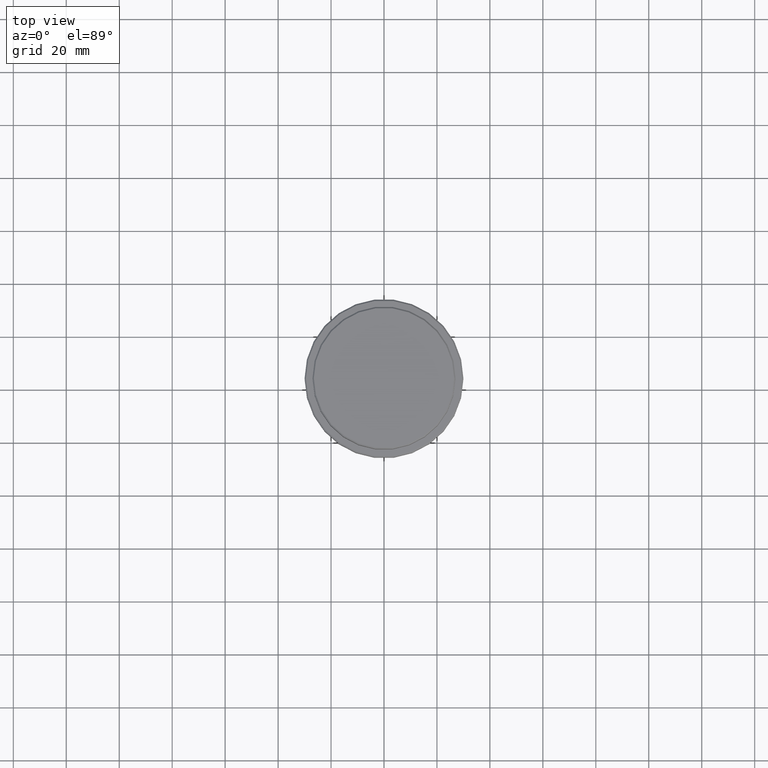
[diagram: clean part render]
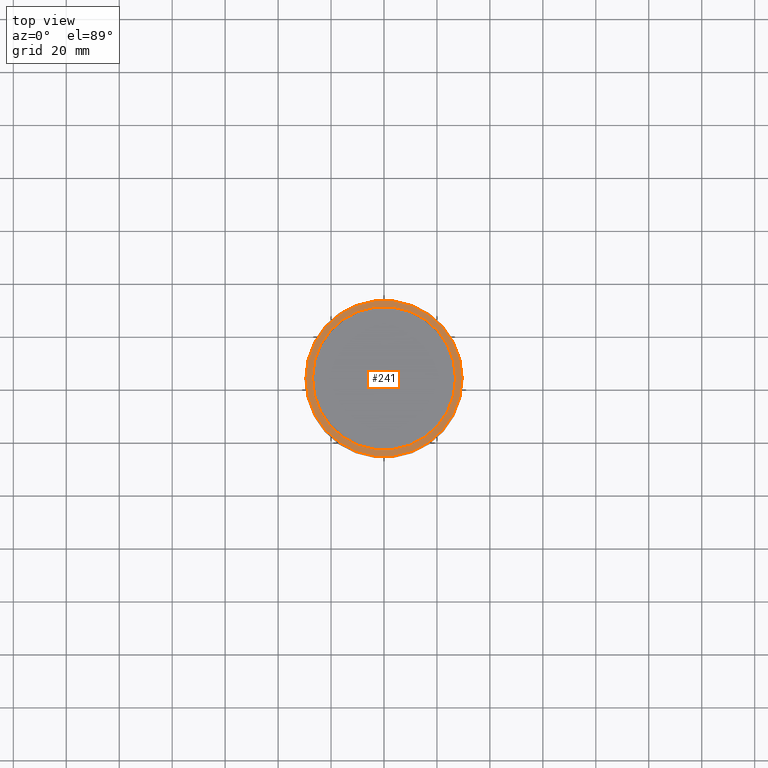
[diagram: same view with one face highlighted and labeled with its STEP entity id]
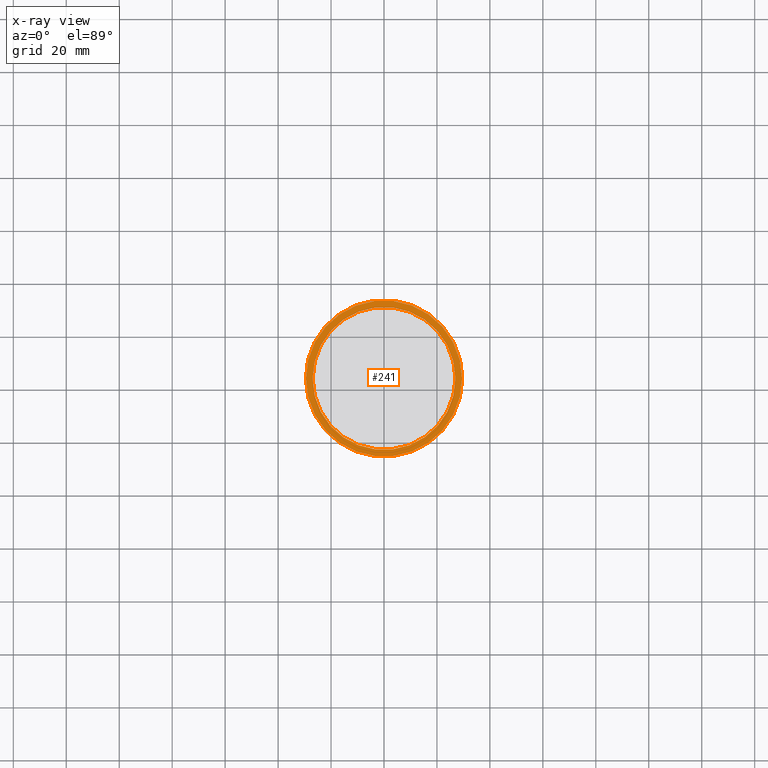
[diagram: x-ray of the same camera — body ghosted, the highlighted face saturated]
A machine part, top view. The second image highlights one B-rep face of the part: STEP entity #241.
The next image is the same camera in x-ray: the body ghosted, the highlighted face saturated — about 0% of this face is hidden behind the body in this view.
In plain terms, the highlighted planar face has unit normal (0, -0, 1).
Its self-contained STEP definition (entity closure, byte-faithful):
#54 = DIRECTION ( 'NONE',  ( 0.000000000000000000, 0.000000000000000000, -1.000000000000000000 ) ) ;
#69 = ORIENTED_EDGE ( 'NONE', *, *, #1343, .T. ) ;
#77 = EDGE_LOOP ( 'NONE', ( #1332, #253 ) ) ;
#112 = CARTESIAN_POINT ( 'NONE',  ( 0.000000000000000000, 0.000000000000000000, -12.00000000000000178 ) ) ;
#164 = DIRECTION ( 'NONE',  ( 1.000000000000000000, 0.000000000000000000, 0.000000000000000000 ) ) ;
#215 = CARTESIAN_POINT ( 'NONE',  ( 26.99999999999999289, 0.000000000000000000, -12.00000000000000178 ) ) ;
#241 = ADVANCED_FACE ( 'NONE', ( #627, #1363 ), #738, .T. ) ;
#243 = AXIS2_PLACEMENT_3D ( 'NONE', #112, #792, #1222 ) ;
#250 = CARTESIAN_POINT ( 'NONE',  ( 0.000000000000000000, 0.000000000000000000, -12.00000000000000178 ) ) ;
#253 = ORIENTED_EDGE ( 'NONE', *, *, #1354, .T. ) ;
#255 = DIRECTION ( 'NONE',  ( 1.000000000000000000, 0.000000000000000000, 0.000000000000000000 ) ) ;
#272 = VERTEX_POINT ( 'NONE', #580 ) ;
#279 = DIRECTION ( 'NONE',  ( 1.000000000000000000, 0.000000000000000000, 0.000000000000000000 ) ) ;
#309 = CARTESIAN_POINT ( 'NONE',  ( -26.99999999999999289, 3.306546357697852944E-15, -12.00000000000000178 ) ) ;
#360 = DIRECTION ( 'NONE',  ( -0.000000000000000000, -0.000000000000000000, 1.000000000000000000 ) ) ;
#390 = DIRECTION ( 'NONE',  ( 0.000000000000000000, -0.000000000000000000, 1.000000000000000000 ) ) ;
#475 = CIRCLE ( 'NONE', #1109, 26.99999999999999289 ) ;
#480 = DIRECTION ( 'NONE',  ( 0.000000000000000000, 0.000000000000000000, -1.000000000000000000 ) ) ;
#561 = CARTESIAN_POINT ( 'NONE',  ( 29.50000000000000000, 3.643324227463375391E-15, -12.00000000000000178 ) ) ;
#580 = CARTESIAN_POINT ( 'NONE',  ( -29.50000000000000000, 0.000000000000000000, -12.00000000000000178 ) ) ;
#613 = AXIS2_PLACEMENT_3D ( 'NONE', #821, #54, #164 ) ;
#618 = VERTEX_POINT ( 'NONE', #309 ) ;
#627 = FACE_OUTER_BOUND ( 'NONE', #851, .T. ) ;
#697 = AXIS2_PLACEMENT_3D ( 'NONE', #1390, #390, #1147 ) ;
#704 = CIRCLE ( 'NONE', #613, 26.99999999999999289 ) ;
#738 = PLANE ( 'NONE',  #697 ) ;
#767 = EDGE_CURVE ( 'NONE', #771, #272, #1295, .T. ) ;
#771 = VERTEX_POINT ( 'NONE', #561 ) ;
#792 = DIRECTION ( 'NONE',  ( -0.000000000000000000, -0.000000000000000000, 1.000000000000000000 ) ) ;
#816 = AXIS2_PLACEMENT_3D ( 'NONE', #250, #360, #279 ) ;
#821 = CARTESIAN_POINT ( 'NONE',  ( 0.000000000000000000, 0.000000000000000000, -12.00000000000000178 ) ) ;
#824 = VERTEX_POINT ( 'NONE', #215 ) ;
#832 = ORIENTED_EDGE ( 'NONE', *, *, #767, .T. ) ;
#851 = EDGE_LOOP ( 'NONE', ( #69, #832 ) ) ;
#886 = CIRCLE ( 'NONE', #816, 29.50000000000000000 ) ;
#1109 = AXIS2_PLACEMENT_3D ( 'NONE', #1114, #480, #255 ) ;
#1114 = CARTESIAN_POINT ( 'NONE',  ( 0.000000000000000000, 0.000000000000000000, -12.00000000000000178 ) ) ;
#1147 = DIRECTION ( 'NONE',  ( 1.000000000000000000, 0.000000000000000000, 0.000000000000000000 ) ) ;
#1222 = DIRECTION ( 'NONE',  ( 1.000000000000000000, 0.000000000000000000, 0.000000000000000000 ) ) ;
#1295 = CIRCLE ( 'NONE', #243, 29.50000000000000000 ) ;
#1308 = EDGE_CURVE ( 'NONE', #824, #618, #475, .T. ) ;
#1332 = ORIENTED_EDGE ( 'NONE', *, *, #1308, .T. ) ;
#1343 = EDGE_CURVE ( 'NONE', #272, #771, #886, .T. ) ;
#1354 = EDGE_CURVE ( 'NONE', #618, #824, #704, .T. ) ;
#1363 = FACE_BOUND ( 'NONE', #77, .T. ) ;
#1390 = CARTESIAN_POINT ( 'NONE',  ( 0.000000000000000000, 26.49999999999999645, -12.00000000000000178 ) ) ;